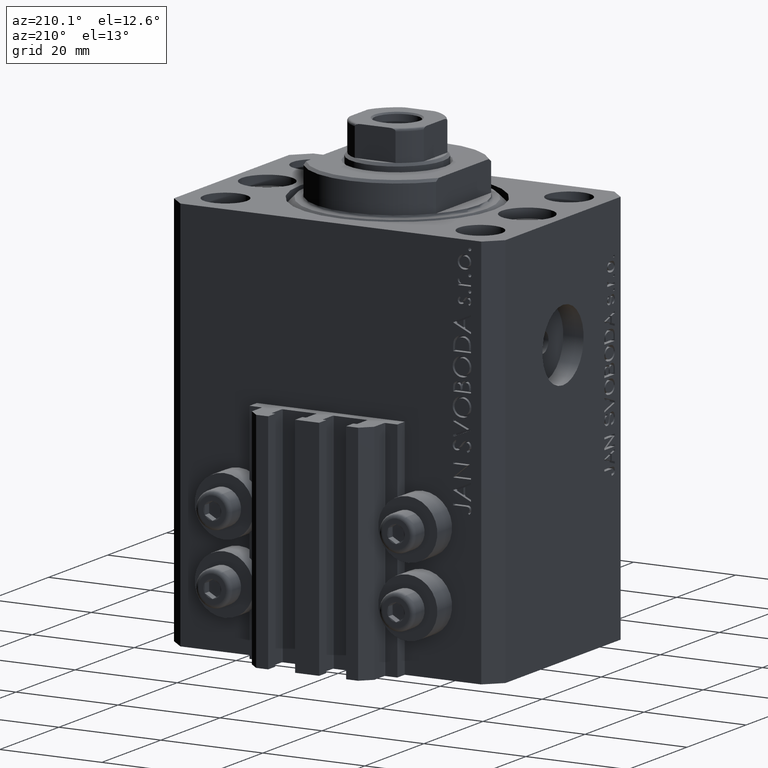
[diagram: clean part render]
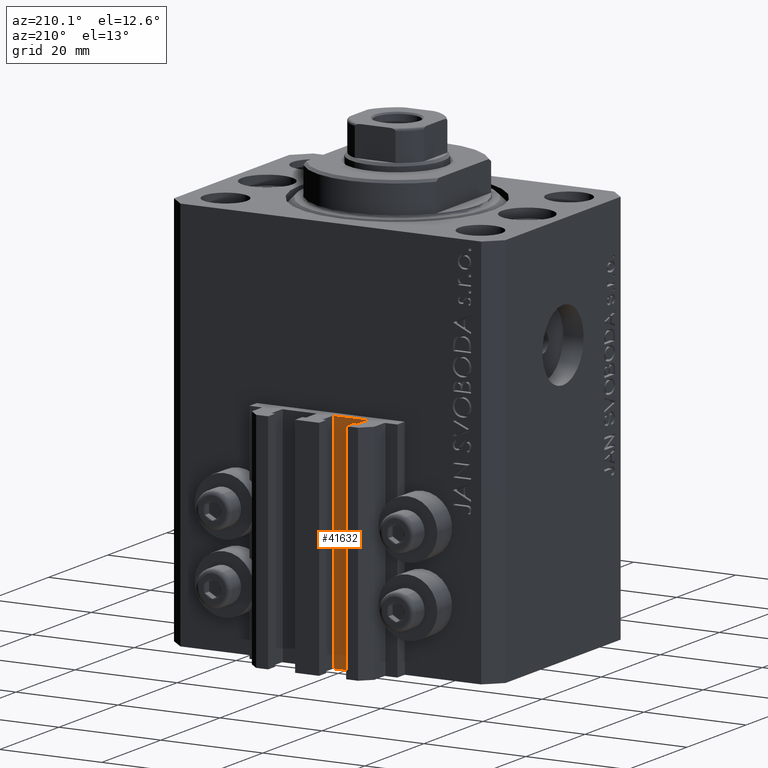
[diagram: same view with one face highlighted and labeled with its STEP entity id]
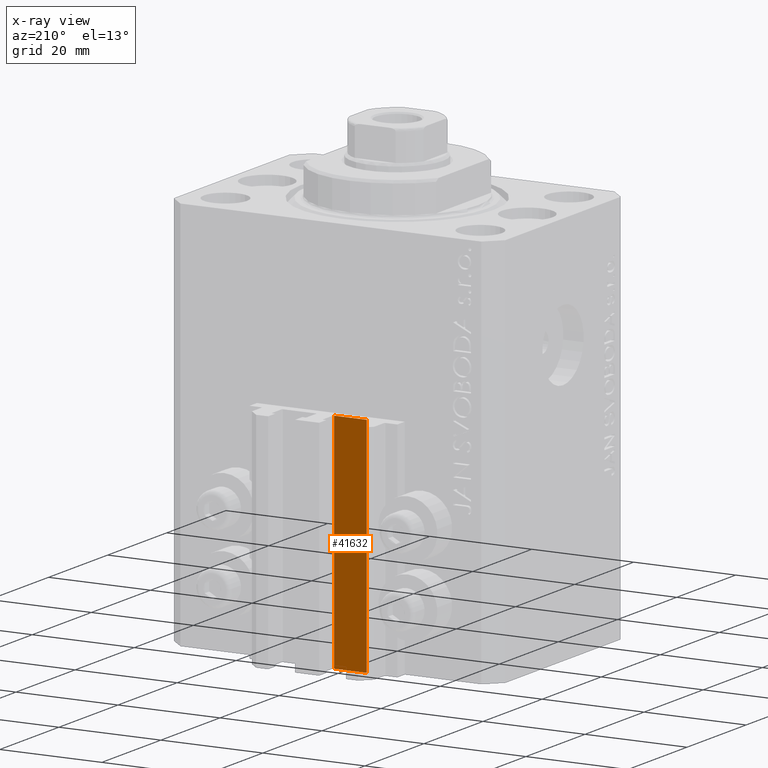
[diagram: x-ray of the same camera — body ghosted, the highlighted face saturated]
A machine part, auxiliary view. The second image highlights one B-rep face of the part: STEP entity #41632.
The next image is the same camera in x-ray: the body ghosted, the highlighted face saturated — about 0% of this face is hidden behind the body in this view.
In plain terms, the highlighted planar face has unit normal (0, 1, 0).
Its self-contained STEP definition (entity closure, byte-faithful):
#753 = CARTESIAN_POINT ( 'NONE',  ( -1.800000000000000933, 24.49999999999949551, -77.00000000000000000 ) ) ;
#1171 = AXIS2_PLACEMENT_3D ( 'NONE', #753, #11733, #8153 ) ;
#1348 = VERTEX_POINT ( 'NONE', #25668 ) ;
#2196 = LINE ( 'NONE', #20338, #17038 ) ;
#3585 = VERTEX_POINT ( 'NONE', #30415 ) ;
#5704 = VERTEX_POINT ( 'NONE', #30298 ) ;
#7819 = VECTOR ( 'NONE', #33900, 1000.000000000000000 ) ;
#8153 = DIRECTION ( 'NONE',  ( 0.000000000000000000, 0.000000000000000000, 1.000000000000000000 ) ) ;
#8343 = LINE ( 'NONE', #18855, #7819 ) ;
#9100 = EDGE_CURVE ( 'NONE', #1348, #5704, #8343, .T. ) ;
#9821 = EDGE_LOOP ( 'NONE', ( #10537, #36718, #15535, #10470 ) ) ;
#10470 = ORIENTED_EDGE ( 'NONE', *, *, #29144, .T. ) ;
#10537 = ORIENTED_EDGE ( 'NONE', *, *, #36722, .F. ) ;
#11270 = PLANE ( 'NONE',  #1171 ) ;
#11725 = VERTEX_POINT ( 'NONE', #16422 ) ;
#11733 = DIRECTION ( 'NONE',  ( 0.000000000000000000, 1.000000000000000000, -0.000000000000000000 ) ) ;
#14121 = LINE ( 'NONE', #17950, #46658 ) ;
#15535 = ORIENTED_EDGE ( 'NONE', *, *, #44180, .T. ) ;
#16422 = CARTESIAN_POINT ( 'NONE',  ( -8.199999999999999289, 24.49999999999949551, -77.00000000000000000 ) ) ;
#17038 = VECTOR ( 'NONE', #32015, 1000.000000000000000 ) ;
#17950 = CARTESIAN_POINT ( 'NONE',  ( -8.199999999999999289, 24.49999999999949551, -77.00000000000000000 ) ) ;
#18855 = CARTESIAN_POINT ( 'NONE',  ( -1.800000000000000933, 24.49999999999949551, -77.00000000000000000 ) ) ;
#20338 = CARTESIAN_POINT ( 'NONE',  ( -1.800000000000000933, 24.49999999999949551, -33.00000000000000000 ) ) ;
#21011 = CARTESIAN_POINT ( 'NONE',  ( -1.800000000000000933, 24.49999999999949551, -77.00000000000000000 ) ) ;
#21239 = LINE ( 'NONE', #21011, #24131 ) ;
#24131 = VECTOR ( 'NONE', #45612, 1000.000000000000000 ) ;
#25668 = CARTESIAN_POINT ( 'NONE',  ( -1.800000000000000933, 24.49999999999949551, -77.00000000000000000 ) ) ;
#29144 = EDGE_CURVE ( 'NONE', #11725, #3585, #14121, .T. ) ;
#30298 = CARTESIAN_POINT ( 'NONE',  ( -1.800000000000000933, 24.49999999999949551, -33.00000000000000000 ) ) ;
#30415 = CARTESIAN_POINT ( 'NONE',  ( -8.199999999999999289, 24.49999999999949551, -33.00000000000000000 ) ) ;
#32015 = DIRECTION ( 'NONE',  ( -1.000000000000000000, 0.000000000000000000, 0.000000000000000000 ) ) ;
#33900 = DIRECTION ( 'NONE',  ( 0.000000000000000000, 0.000000000000000000, 1.000000000000000000 ) ) ;
#36718 = ORIENTED_EDGE ( 'NONE', *, *, #9100, .F. ) ;
#36722 = EDGE_CURVE ( 'NONE', #5704, #3585, #2196, .T. ) ;
#41632 = ADVANCED_FACE ( 'NONE', ( #44681 ), #11270, .T. ) ;
#44180 = EDGE_CURVE ( 'NONE', #1348, #11725, #21239, .T. ) ;
#44681 = FACE_OUTER_BOUND ( 'NONE', #9821, .T. ) ;
#45612 = DIRECTION ( 'NONE',  ( -1.000000000000000000, 0.000000000000000000, 0.000000000000000000 ) ) ;
#46610 = DIRECTION ( 'NONE',  ( 0.000000000000000000, 0.000000000000000000, 1.000000000000000000 ) ) ;
#46658 = VECTOR ( 'NONE', #46610, 1000.000000000000000 ) ;